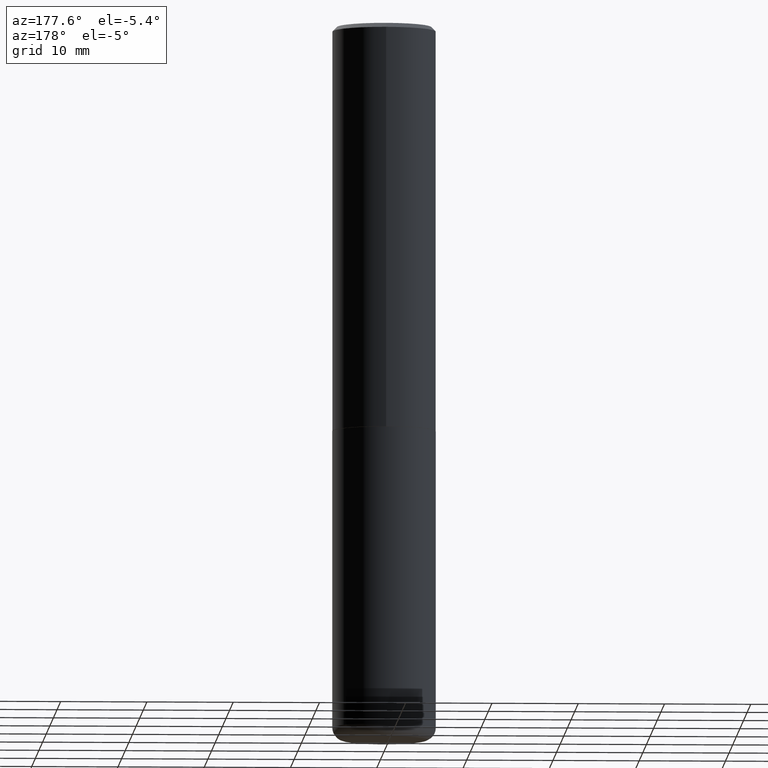
[diagram: clean part render]
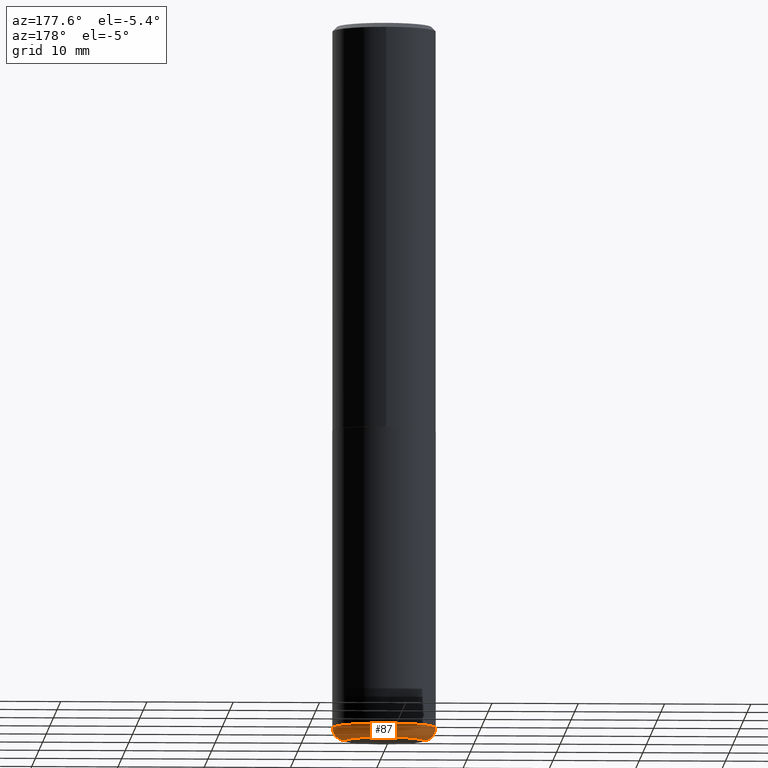
[diagram: same view with one face highlighted and labeled with its STEP entity id]
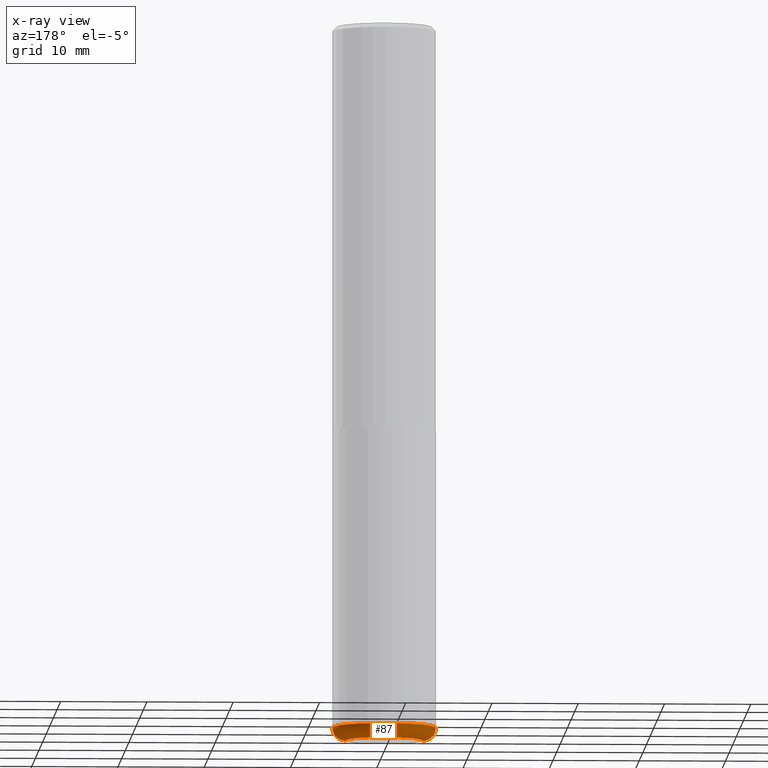
[diagram: x-ray of the same camera — body ghosted, the highlighted face saturated]
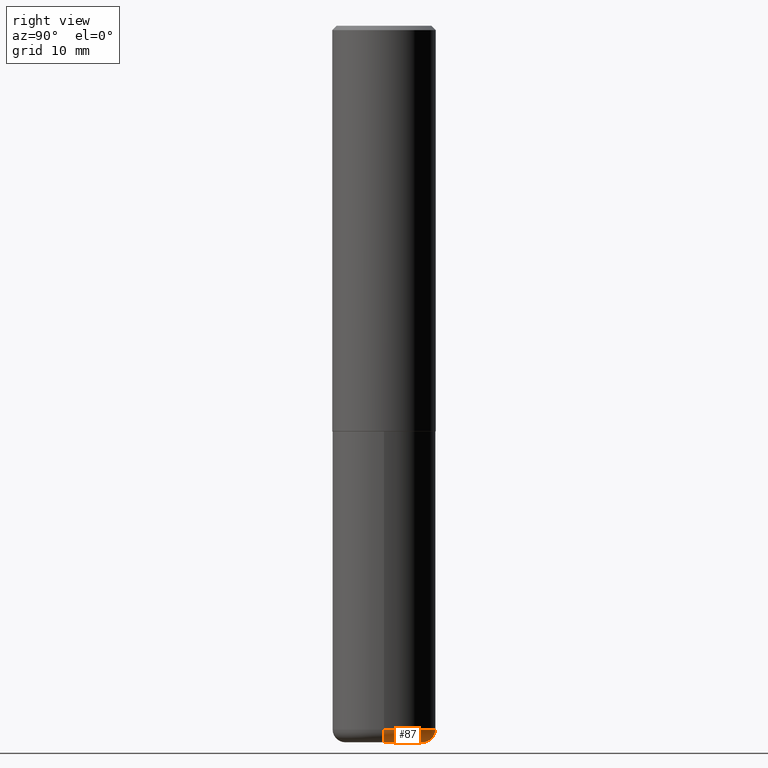
[diagram: same view with one face highlighted and labeled with its STEP entity id]
A machine part, auxiliary view. The second image highlights one B-rep face of the part: STEP entity #87.
The next image is the same camera in x-ray: the body ghosted, the highlighted face saturated — about 0% of this face is hidden behind the body in this view.
A second angle (right view) of the same face is appended — the face is thin or edge-on in the first view.
In plain terms, the highlighted toroidal blend (fillet) surface has major radius 4.4983 mm and minor (blend) radius 1.5011 mm.
Its self-contained STEP definition (entity closure, byte-faithful):
#6 = CARTESIAN_POINT ( 'NONE',  ( -0.1771000000000000074, -9.944395838780979940E-15, -3.208600000000000119 ) ) ;
#13 = DIRECTION ( 'NONE',  ( -1.000000000000000000, 7.105427357600997914E-15, 0.000000000000000000 ) ) ;
#16 = DIRECTION ( 'NONE',  ( 1.000000000000000000, -6.982962677686265922E-15, 4.883557194083112340E-29 ) ) ;
#23 = CARTESIAN_POINT ( 'NONE',  ( -0.2361999999999999933, -9.524465081946761225E-15, -3.208600000000000119 ) ) ;
#30 = DIRECTION ( 'NONE',  ( 1.000000000000000000, -6.982962677686265133E-15, 0.000000000000000000 ) ) ;
#42 = AXIS2_PLACEMENT_3D ( 'NONE', #244, #249, #30 ) ;
#75 = CIRCLE ( 'NONE', #265, 0.05909999999999995812 ) ;
#87 = ADVANCED_FACE ( 'NONE', ( #198 ), #285, .T. ) ;
#92 = AXIS2_PLACEMENT_3D ( 'NONE', #304, #178, #113 ) ;
#110 = DIRECTION ( 'NONE',  ( -2.445468806185136597E-29, 3.491481338843145583E-15, 1.000000000000000000 ) ) ;
#112 = CARTESIAN_POINT ( 'NONE',  ( 7.991058417971171713E-29, -1.140911357093774644E-14, -3.267700000000000049 ) ) ;
#113 = DIRECTION ( 'NONE',  ( 1.000000000000000000, -6.982962677686266711E-15, 0.000000000000000000 ) ) ;
#151 = AXIS2_PLACEMENT_3D ( 'NONE', #112, #110, #216 ) ;
#155 = CIRCLE ( 'NONE', #42, 0.2361999999999999933 ) ;
#167 = VERTEX_POINT ( 'NONE', #377 ) ;
#177 = EDGE_CURVE ( 'NONE', #167, #392, #273, .T. ) ;
#178 = DIRECTION ( 'NONE',  ( -6.982962677686266711E-15, -1.000000000000000000, 3.491481338843145583E-15 ) ) ;
#198 = FACE_OUTER_BOUND ( 'NONE', #360, .T. ) ;
#200 = ORIENTED_EDGE ( 'NONE', *, *, #355, .T. ) ;
#204 = CARTESIAN_POINT ( 'NONE',  ( -0.1771000000000000074, -9.837603733926685782E-15, -3.267700000000000049 ) ) ;
#205 = EDGE_CURVE ( 'NONE', #392, #368, #155, .T. ) ;
#216 = DIRECTION ( 'NONE',  ( 1.000000000000000000, -6.982962677686265922E-15, 0.000000000000000000 ) ) ;
#220 = ORIENTED_EDGE ( 'NONE', *, *, #263, .T. ) ;
#244 = CARTESIAN_POINT ( 'NONE',  ( 7.846531211525630380E-29, -1.120276702381211762E-14, -3.208600000000000119 ) ) ;
#249 = DIRECTION ( 'NONE',  ( -2.445468806185136597E-29, 3.491481338843145583E-15, 1.000000000000000000 ) ) ;
#263 = EDGE_CURVE ( 'NONE', #333, #368, #75, .T. ) ;
#265 = AXIS2_PLACEMENT_3D ( 'NONE', #6, #321, #13 ) ;
#273 = CIRCLE ( 'NONE', #92, 0.05909999999999995812 ) ;
#279 = ORIENTED_EDGE ( 'NONE', *, *, #205, .F. ) ;
#285 = TOROIDAL_SURFACE ( 'NONE', #320, 0.1771000000000000074, 0.05909999999999995812 ) ;
#304 = CARTESIAN_POINT ( 'NONE',  ( 0.1771000000000000074, -1.243944971403035492E-14, -3.208600000000000119 ) ) ;
#319 = DIRECTION ( 'NONE',  ( -2.445468806185136597E-29, 3.491481338843145583E-15, 1.000000000000000000 ) ) ;
#320 = AXIS2_PLACEMENT_3D ( 'NONE', #322, #319, #16 ) ;
#321 = DIRECTION ( 'NONE',  ( 7.105427357601001859E-15, 1.000000000000000000, -3.491481338843145583E-15 ) ) ;
#322 = CARTESIAN_POINT ( 'NONE',  ( 7.846531211525630380E-29, -1.120276702381211762E-14, -3.208600000000000119 ) ) ;
#333 = VERTEX_POINT ( 'NONE', #204 ) ;
#352 = ORIENTED_EDGE ( 'NONE', *, *, #177, .F. ) ;
#355 = EDGE_CURVE ( 'NONE', #167, #333, #415, .T. ) ;
#360 = EDGE_LOOP ( 'NONE', ( #200, #220, #279, #352 ) ) ;
#368 = VERTEX_POINT ( 'NONE', #23 ) ;
#377 = CARTESIAN_POINT ( 'NONE',  ( 0.1771000000000000074, -1.264579626115598374E-14, -3.267700000000000049 ) ) ;
#392 = VERTEX_POINT ( 'NONE', #401 ) ;
#401 = CARTESIAN_POINT ( 'NONE',  ( 0.2361999999999999933, -1.285214280828161414E-14, -3.208600000000000119 ) ) ;
#415 = CIRCLE ( 'NONE', #151, 0.1771000000000000074 ) ;